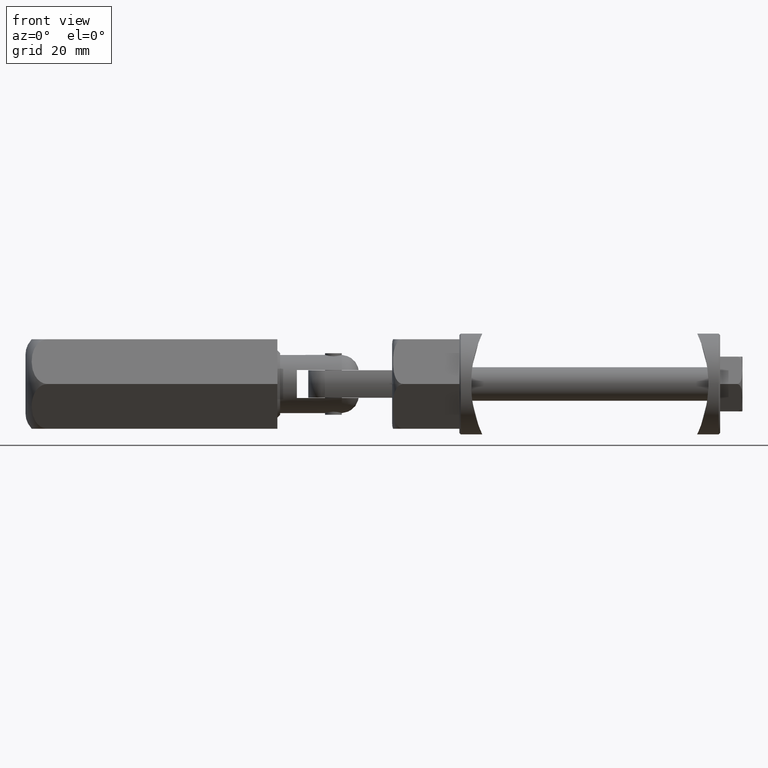
[diagram: clean part render]
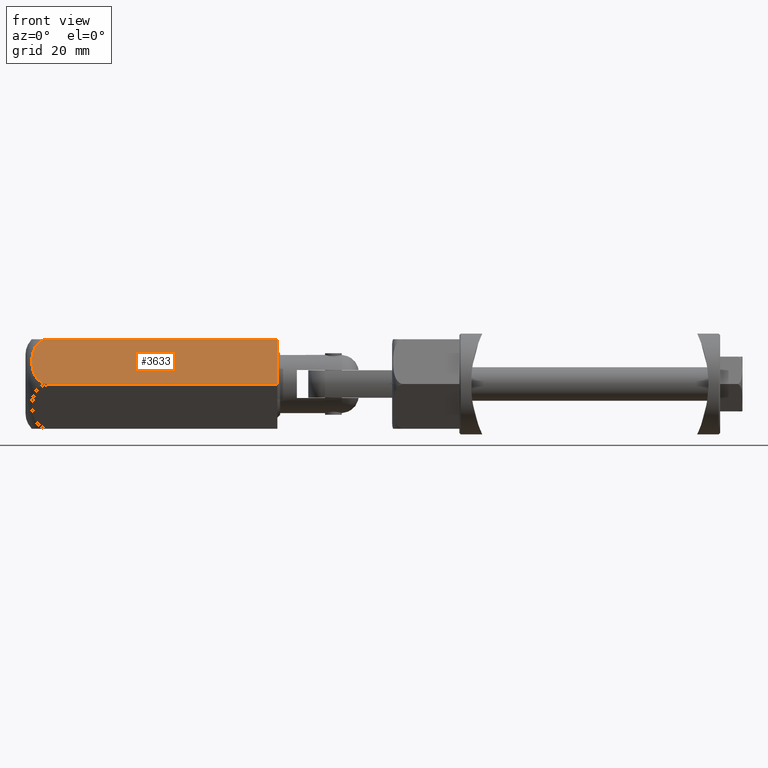
[diagram: same view with one face highlighted and labeled with its STEP entity id]
A machine part, front view. The second image highlights one B-rep face of the part: STEP entity #3633.
In plain terms, the highlighted planar face has unit normal (0, 0.866, -0.5).
Its self-contained STEP definition (entity closure, byte-faithful):
#196 = CARTESIAN_POINT ( 'NONE',  ( -8.000000000000955680, -4.618802153516455178, 41.25421066781149193 ) ) ;
#272 = FACE_OUTER_BOUND ( 'NONE', #1783, .T. ) ;
#320 = CARTESIAN_POINT ( 'NONE',  ( -1.769137840282685528E-15, -9.237604307034015250, 45.00000000000000000 ) ) ;
#327 = CARTESIAN_POINT ( 'NONE',  ( -7.686130079813024985, -4.800015036427481618, 42.19438614450636038 ) ) ;
#480 = VERTEX_POINT ( 'NONE', #1590 ) ;
#556 = CARTESIAN_POINT ( 'NONE',  ( -8.000000000000003553, -4.618802153517005848, 45.00000000000000000 ) ) ;
#605 = CARTESIAN_POINT ( 'NONE',  ( -8.000000000000003553, -4.618802153517005848, 45.00000000000000000 ) ) ;
#1097 = CARTESIAN_POINT ( 'NONE',  ( -1.769137840282685528E-15, -9.237604307034015250, 40.99999999999999289 ) ) ;
#1341 = PLANE ( 'NONE',  #4593 ) ;
#1361 = CARTESIAN_POINT ( 'NONE',  ( -0.04124585867886597368, -9.213790999422815986, 41.49961142492605148 ) ) ;
#1544 = CARTESIAN_POINT ( 'NONE',  ( -4.427176074979077391, -6.681573008394971147, 43.88225172653201156 ) ) ;
#1590 = CARTESIAN_POINT ( 'NONE',  ( -1.769137840282685528E-15, -9.237604307034015250, 0.000000000000000000 ) ) ;
#1783 = EDGE_LOOP ( 'NONE', ( #4727, #3420, #3053, #14699 ) ) ;
#2712 = CARTESIAN_POINT ( 'NONE',  ( -0.3171166367991717361, -9.054516931413505887, 42.18434787125507057 ) ) ;
#2765 = CARTESIAN_POINT ( 'NONE',  ( -0.2069844883456818663, -9.118101756969558380, 41.96820820789258732 ) ) ;
#2958 = CARTESIAN_POINT ( 'NONE',  ( -5.075386445797204438, -6.307328576311621582, 43.80277072359242396 ) ) ;
#3053 = ORIENTED_EDGE ( 'NONE', *, *, #16685, .T. ) ;
#3241 = B_SPLINE_CURVE_WITH_KNOTS ( 'NONE', 3,
 ( #5518, #11221, #1361, #11096, #2765, #2712, #15287, #16798, #15472, #14031, #5630, #6980, #7049, #7112, #11282, #16933, #6924, #8441, #1544, #5757, #2958, #15536, #7174, #16676, #9730, #16732, #7363, #17234, #8636, #327, #14274, #14387, #196, #12807 ),
 .UNSPECIFIED., .F., .F.,
 ( 4, 2, 2, 2, 2, 2, 2, 2, 2, 2, 2, 2, 2, 2, 2, 2, 4 ),
 ( 1.959244678758189662E-07, 0.0007486943119338005650, 0.001122943505666772939, 0.001497192699399745421, 0.001871441893132717469, 0.002245691086865689735, 0.002994189474331634699, 0.004491186249263531133, 0.005988183024195428868, 0.006736681411661377301, 0.007485179799127324868, 0.008233678186593273302, 0.008982176574059221735, 0.009730674961525171904, 0.01047917334899111860, 0.01122767173645706877, 0.01197617012392301721 ),
 .UNSPECIFIED. ) ;
#3420 = ORIENTED_EDGE ( 'NONE', *, *, #15258, .T. ) ;
#3633 = ADVANCED_FACE ( 'NONE', ( #272 ), #1341, .F. ) ;
#4316 = EDGE_CURVE ( 'NONE', #12012, #480, #8788, .T. ) ;
#4593 = AXIS2_PLACEMENT_3D ( 'NONE', #556, #10334, #6166 ) ;
#4727 = ORIENTED_EDGE ( 'NONE', *, *, #17669, .F. ) ;
#5518 = CARTESIAN_POINT ( 'NONE',  ( -1.769137840282685528E-15, -9.237604307034015250, 40.99999999999999289 ) ) ;
#5561 = LINE ( 'NONE', #605, #16285 ) ;
#5630 = CARTESIAN_POINT ( 'NONE',  ( -0.8327565186281271625, -8.756812106834653164, 42.82926552586379643 ) ) ;
#5757 = CARTESIAN_POINT ( 'NONE',  ( -4.858850436014398255, -6.432345699848972309, 43.83720161989546682 ) ) ;
#6161 = VECTOR ( 'NONE', #13909, 999.9999999999998863 ) ;
#6166 = DIRECTION ( 'NONE',  ( -0.8660254037844384856, 0.5000000000000001110, 0.000000000000000000 ) ) ;
#6322 = VERTEX_POINT ( 'NONE', #15931 ) ;
#6924 = CARTESIAN_POINT ( 'NONE',  ( -3.566376297996639799, -7.178555991354155452, 43.89271815893957296 ) ) ;
#6980 = CARTESIAN_POINT ( 'NONE',  ( -1.092655103728780830, -8.606759588764788305, 43.05448962635250609 ) ) ;
#7049 = CARTESIAN_POINT ( 'NONE',  ( -1.282076073300619790, -8.497397340992328907, 43.18472171354525813 ) ) ;
#7112 = CARTESIAN_POINT ( 'NONE',  ( -1.867204179053449264, -8.159573471625511942, 43.51479239094587115 ) ) ;
#7174 = CARTESIAN_POINT ( 'NONE',  ( -5.710173907115474456, -5.940833864641318129, 43.64835411522502540 ) ) ;
#7293 = VERTEX_POINT ( 'NONE', #1097 ) ;
#7363 = CARTESIAN_POINT ( 'NONE',  ( -6.903453441227616061, -5.251893604403200300, 43.05745001845090059 ) ) ;
#7725 = DIRECTION ( 'NONE',  ( -0.000000000000000000, -0.000000000000000000, -1.000000000000000000 ) ) ;
#8249 = CARTESIAN_POINT ( 'NONE',  ( -8.000000000000003553, -4.618802153517005848, 0.000000000000000000 ) ) ;
#8441 = CARTESIAN_POINT ( 'NONE',  ( -4.211713698009293516, -6.805970269738712553, 43.89306722057519750 ) ) ;
#8636 = CARTESIAN_POINT ( 'NONE',  ( -7.412878624981697584, -4.957776837430807326, 42.58301006518296106 ) ) ;
#8788 = LINE ( 'NONE', #8249, #6161 ) ;
#9730 = CARTESIAN_POINT ( 'NONE',  ( -6.326321431456100264, -5.585100925602735522, 43.40554057758357231 ) ) ;
#10334 = DIRECTION ( 'NONE',  ( 0.5000000000000002220, 0.8660254037844385966, -0.000000000000000000 ) ) ;
#11096 = CARTESIAN_POINT ( 'NONE',  ( -0.1587222393036589740, -9.145965979445666250, 41.85383690137565083 ) ) ;
#11221 = CARTESIAN_POINT ( 'NONE',  ( 4.208059681959364084E-15, -9.237604307034020579, 41.25468682717441737 ) ) ;
#11282 = CARTESIAN_POINT ( 'NONE',  ( -2.283122639363383222, -7.919442836604635438, 43.66016978902230505 ) ) ;
#12012 = VERTEX_POINT ( 'NONE', #13476 ) ;
#12807 = CARTESIAN_POINT ( 'NONE',  ( -8.000000000000003553, -4.618802153517005848, 40.99999999999999289 ) ) ;
#13242 = VECTOR ( 'NONE', #7725, 1000.000000000000000 ) ;
#13476 = CARTESIAN_POINT ( 'NONE',  ( -8.000000000000003553, -4.618802153517005848, 0.000000000000000000 ) ) ;
#13677 = LINE ( 'NONE', #320, #13242 ) ;
#13909 = DIRECTION ( 'NONE',  ( 0.8660254037844385966, -0.5000000000000002220, 0.000000000000000000 ) ) ;
#14031 = CARTESIAN_POINT ( 'NONE',  ( -0.7497180387213164821, -8.804754395561943170, 42.74896336844651756 ) ) ;
#14274 = CARTESIAN_POINT ( 'NONE',  ( -7.800838105025687419, -4.733788327192741008, 41.97415419835532902 ) ) ;
#14387 = CARTESIAN_POINT ( 'NONE',  ( -7.956934006797327541, -4.643666316285486317, 41.50668772745575552 ) ) ;
#14699 = ORIENTED_EDGE ( 'NONE', *, *, #4316, .T. ) ;
#15258 = EDGE_CURVE ( 'NONE', #7293, #6322, #3241, .T. ) ;
#15287 = CARTESIAN_POINT ( 'NONE',  ( -0.3793270624881753261, -9.018599725395560540, 42.28713500885485388 ) ) ;
#15472 = CARTESIAN_POINT ( 'NONE',  ( -0.5919353950492868277, -8.895850247359442520, 42.57629628855899995 ) ) ;
#15536 = CARTESIAN_POINT ( 'NONE',  ( -5.500537255961099881, -6.061867641617307179, 43.70835956831880509 ) ) ;
#15821 = DIRECTION ( 'NONE',  ( -0.000000000000000000, -0.000000000000000000, -1.000000000000000000 ) ) ;
#15931 = CARTESIAN_POINT ( 'NONE',  ( -8.000000000000003553, -4.618802153517005848, 40.99999999999999289 ) ) ;
#16285 = VECTOR ( 'NONE', #15821, 1000.000000000000000 ) ;
#16676 = CARTESIAN_POINT ( 'NONE',  ( -6.122326393555928448, -5.702877515647745810, 43.49732817391965511 ) ) ;
#16685 = EDGE_CURVE ( 'NONE', #6322, #12012, #5561, .T. ) ;
#16732 = CARTESIAN_POINT ( 'NONE',  ( -6.717318178413012930, -5.359358848494893302, 43.18514700619215319 ) ) ;
#16798 = CARTESIAN_POINT ( 'NONE',  ( -0.5166738966480791673, -8.939302493720996168, 42.48315152179992538 ) ) ;
#16933 = CARTESIAN_POINT ( 'NONE',  ( -3.137505040952397906, -7.426164927056340126, 43.85019408832061316 ) ) ;
#17234 = CARTESIAN_POINT ( 'NONE',  ( -7.251454149378138148, -5.050975301874317758, 42.75669433309090550 ) ) ;
#17669 = EDGE_CURVE ( 'NONE', #7293, #480, #13677, .T. ) ;